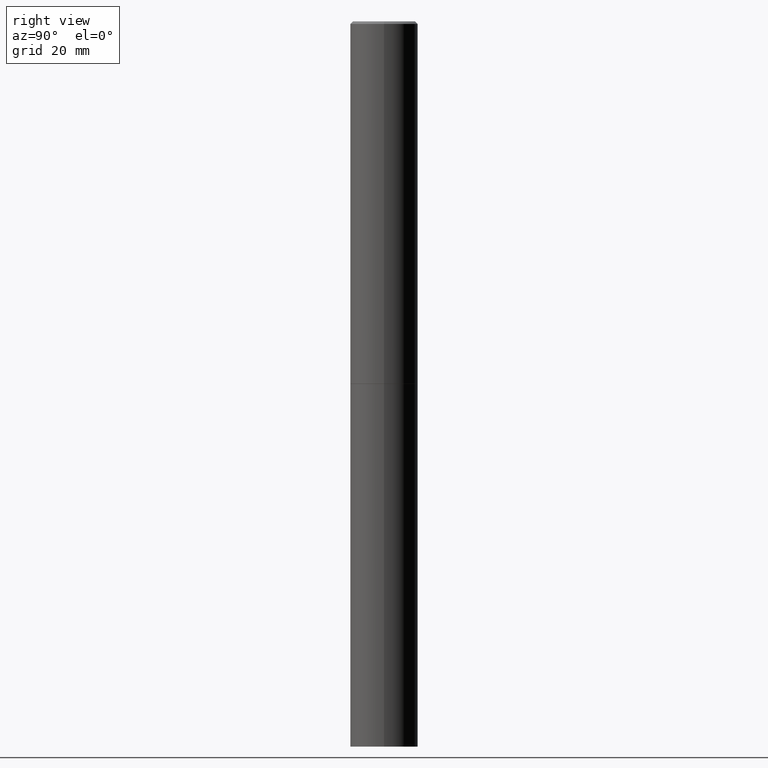
[diagram: clean part render]
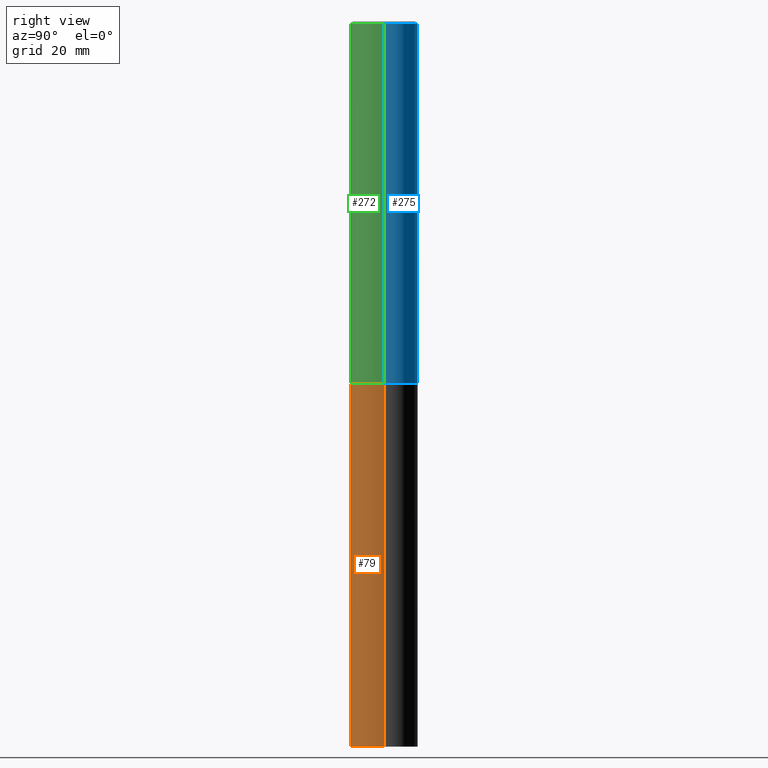
[diagram: same view with three faces highlighted in distinct colors, each labeled with its STEP entity id]
A machine part, right view with three faces highlighted in distinct colors.
Their STEP definitions:

[orange] entity #79 — the highlighted cylindrical surface (edge-blend (fillet) strip) has radius 7.0002 mm, axis along (-0, 0, 1).
#34 = DIRECTION ( 'NONE',  ( 1.000000000000000000, -6.982962677686265922E-15, 0.000000000000000000 ) ) ;
#41 = AXIS2_PLACEMENT_3D ( 'NONE', #343, #87, #140 ) ;
#72 = DIRECTION ( 'NONE',  ( -2.445468806185136597E-29, 3.491481338843145583E-15, 1.000000000000000000 ) ) ;
#74 = ORIENTED_EDGE ( 'NONE', *, *, #168, .F. ) ;
#79 = ADVANCED_FACE ( 'NONE', ( #316 ), #113, .T. ) ;
#85 = DIRECTION ( 'NONE',  ( -2.445468806185136597E-29, 3.491481338843145583E-15, 1.000000000000000000 ) ) ;
#87 = DIRECTION ( 'NONE',  ( -2.445468806185136597E-29, 3.491481338843145583E-15, 1.000000000000000000 ) ) ;
#89 = LINE ( 'NONE', #169, #361 ) ;
#90 = CARTESIAN_POINT ( 'NONE',  ( -0.2756000000000000116, -1.350586421811533611E-14, -5.905499999999999972 ) ) ;
#98 = CIRCLE ( 'NONE', #124, 0.2756000000000000116 ) ;
#100 = CARTESIAN_POINT ( 'NONE',  ( 0.2756000000000000116, -1.924504513970335348E-15, 1.343874319409359987E-29 ) ) ;
#101 = ORIENTED_EDGE ( 'NONE', *, *, #258, .T. ) ;
#113 = CYLINDRICAL_SURFACE ( 'NONE', #41, 0.2756000000000000116 ) ;
#117 = LINE ( 'NONE', #100, #155 ) ;
#118 = ORIENTED_EDGE ( 'NONE', *, *, #338, .F. ) ;
#122 = AXIS2_PLACEMENT_3D ( 'NONE', #216, #85, #306 ) ;
#124 = AXIS2_PLACEMENT_3D ( 'NONE', #211, #72, #34 ) ;
#134 = CARTESIAN_POINT ( 'NONE',  ( 0.2756000000000000116, -2.254344756050852692E-14, -5.905499999999999972 ) ) ;
#140 = DIRECTION ( 'NONE',  ( 1.000000000000000000, -6.982962677686267499E-15, 4.876176775795935793E-29 ) ) ;
#148 = CARTESIAN_POINT ( 'NONE',  ( 0.2756000000000000116, -1.223380146317248997E-14, -2.952700000000000102 ) ) ;
#155 = VECTOR ( 'NONE', #206, 39.37007874015748143 ) ;
#160 = CARTESIAN_POINT ( 'NONE',  ( -0.2756000000000000116, -1.350586421811533611E-14, -2.952700000000000102 ) ) ;
#161 = EDGE_LOOP ( 'NONE', ( #118, #366, #101, #74 ) ) ;
#168 = EDGE_CURVE ( 'NONE', #273, #237, #170, .T. ) ;
#169 = CARTESIAN_POINT ( 'NONE',  ( -0.2756000000000000116, 1.958255779754836195E-15, -1.355658510874252007E-29 ) ) ;
#170 = CIRCLE ( 'NONE', #122, 0.2756000000000000116 ) ;
#205 = DIRECTION ( 'NONE',  ( -2.445468806185136877E-29, 3.491481338843145188E-15, 1.000000000000000000 ) ) ;
#206 = DIRECTION ( 'NONE',  ( -2.445468806185136877E-29, 3.491481338843145188E-15, 1.000000000000000000 ) ) ;
#211 = CARTESIAN_POINT ( 'NONE',  ( 1.444171603492632270E-28, -2.061894304653819197E-14, -5.905499999999999972 ) ) ;
#216 = CARTESIAN_POINT ( 'NONE',  ( 7.220735744022852519E-29, -1.030929694920215502E-14, -2.952700000000000102 ) ) ;
#237 = VERTEX_POINT ( 'NONE', #148 ) ;
#258 = EDGE_CURVE ( 'NONE', #363, #237, #117, .T. ) ;
#273 = VERTEX_POINT ( 'NONE', #160 ) ;
#306 = DIRECTION ( 'NONE',  ( 1.000000000000000000, -6.982962677686265922E-15, 0.000000000000000000 ) ) ;
#316 = FACE_OUTER_BOUND ( 'NONE', #161, .T. ) ;
#322 = EDGE_CURVE ( 'NONE', #362, #363, #98, .T. ) ;
#338 = EDGE_CURVE ( 'NONE', #362, #273, #89, .T. ) ;
#343 = CARTESIAN_POINT ( 'NONE',  ( 0.000000000000000000, 0.000000000000000000, 0.000000000000000000 ) ) ;
#361 = VECTOR ( 'NONE', #205, 39.37007874015748143 ) ;
#362 = VERTEX_POINT ( 'NONE', #90 ) ;
#363 = VERTEX_POINT ( 'NONE', #134 ) ;
#366 = ORIENTED_EDGE ( 'NONE', *, *, #322, .T. ) ;

[blue] entity #275 — the highlighted cylindrical surface (edge-blend (fillet) strip) has radius 7.0002 mm, axis along (-0, 0, 1).
#18 = VERTEX_POINT ( 'NONE', #288 ) ;
#24 = ORIENTED_EDGE ( 'NONE', *, *, #103, .T. ) ;
#43 = CYLINDRICAL_SURFACE ( 'NONE', #164, 0.2755999999999999006 ) ;
#66 = DIRECTION ( 'NONE',  ( -2.445468806185136877E-29, 3.491481338843145188E-15, 1.000000000000000000 ) ) ;
#70 = CARTESIAN_POINT ( 'NONE',  ( -0.2755999999999999006, 1.958255779754835406E-15, -1.355658510874251446E-29 ) ) ;
#86 = DIRECTION ( 'NONE',  ( -2.445468806185136597E-29, 3.491481338843145583E-15, 1.000000000000000000 ) ) ;
#88 = VERTEX_POINT ( 'NONE', #111 ) ;
#103 = EDGE_CURVE ( 'NONE', #109, #88, #318, .T. ) ;
#109 = VERTEX_POINT ( 'NONE', #245 ) ;
#111 = CARTESIAN_POINT ( 'NONE',  ( -0.2755999999999997341, 1.854674887193470078E-15, -0.02000000000000006287 ) ) ;
#125 = DIRECTION ( 'NONE',  ( 1.000000000000000000, -6.982962677686265922E-15, 0.000000000000000000 ) ) ;
#138 = FACE_OUTER_BOUND ( 'NONE', #166, .T. ) ;
#146 = AXIS2_PLACEMENT_3D ( 'NONE', #244, #86, #191 ) ;
#147 = VECTOR ( 'NONE', #323, 39.37007874015748143 ) ;
#149 = CARTESIAN_POINT ( 'NONE',  ( 0.2755999999999997341, -1.960582874962695433E-15, -0.02000000000000006287 ) ) ;
#150 = LINE ( 'NONE', #183, #147 ) ;
#164 = AXIS2_PLACEMENT_3D ( 'NONE', #217, #349, #260 ) ;
#166 = EDGE_LOOP ( 'NONE', ( #247, #24, #201, #344 ) ) ;
#183 = CARTESIAN_POINT ( 'NONE',  ( 0.2755999999999999006, -1.924504513970334560E-15, 1.343874319409359427E-29 ) ) ;
#191 = DIRECTION ( 'NONE',  ( 1.000000000000000000, -6.982962677686264344E-15, 0.000000000000000000 ) ) ;
#201 = ORIENTED_EDGE ( 'NONE', *, *, #293, .F. ) ;
#215 = CARTESIAN_POINT ( 'NONE',  ( 4.890937612370288923E-31, -6.982962677686312563E-17, -0.02000000000000006287 ) ) ;
#217 = CARTESIAN_POINT ( 'NONE',  ( 0.000000000000000000, 0.000000000000000000, 0.000000000000000000 ) ) ;
#226 = EDGE_CURVE ( 'NONE', #18, #109, #346, .T. ) ;
#228 = AXIS2_PLACEMENT_3D ( 'NONE', #215, #261, #125 ) ;
#244 = CARTESIAN_POINT ( 'NONE',  ( 7.218290275216666916E-29, -1.030580546786331359E-14, -2.951700000000000212 ) ) ;
#245 = CARTESIAN_POINT ( 'NONE',  ( -0.2756000000000000671, -3.229561767565248303E-15, -2.951700000000000212 ) ) ;
#247 = ORIENTED_EDGE ( 'NONE', *, *, #226, .T. ) ;
#260 = DIRECTION ( 'NONE',  ( 1.000000000000000000, -6.982962677686267499E-15, 4.876176775795935793E-29 ) ) ;
#261 = DIRECTION ( 'NONE',  ( -2.445468806185136597E-29, 3.491481338843145583E-15, 1.000000000000000000 ) ) ;
#270 = VERTEX_POINT ( 'NONE', #149 ) ;
#275 = ADVANCED_FACE ( 'NONE', ( #138 ), #43, .T. ) ;
#288 = CARTESIAN_POINT ( 'NONE',  ( 0.2756000000000000671, -1.223030998183364854E-14, -2.951700000000000212 ) ) ;
#293 = EDGE_CURVE ( 'NONE', #270, #88, #352, .T. ) ;
#294 = VECTOR ( 'NONE', #66, 39.37007874015748143 ) ;
#303 = EDGE_CURVE ( 'NONE', #18, #270, #150, .T. ) ;
#318 = LINE ( 'NONE', #70, #294 ) ;
#323 = DIRECTION ( 'NONE',  ( -2.445468806185136877E-29, 3.491481338843145188E-15, 1.000000000000000000 ) ) ;
#344 = ORIENTED_EDGE ( 'NONE', *, *, #303, .F. ) ;
#346 = CIRCLE ( 'NONE', #146, 0.2756000000000000671 ) ;
#349 = DIRECTION ( 'NONE',  ( -2.445468806185136597E-29, 3.491481338843145583E-15, 1.000000000000000000 ) ) ;
#352 = CIRCLE ( 'NONE', #228, 0.2755999999999997341 ) ;

[green] entity #272 — the highlighted cylindrical surface (edge-blend (fillet) strip) has radius 7.0002 mm, axis along (-0, 0, 1).
#3 = DIRECTION ( 'NONE',  ( 1.000000000000000000, -6.982962677686265922E-15, 0.000000000000000000 ) ) ;
#10 = AXIS2_PLACEMENT_3D ( 'NONE', #76, #105, #81 ) ;
#18 = VERTEX_POINT ( 'NONE', #288 ) ;
#35 = CYLINDRICAL_SURFACE ( 'NONE', #91, 0.2755999999999999006 ) ;
#53 = CARTESIAN_POINT ( 'NONE',  ( 4.890937612370288923E-31, -6.982962677686312563E-17, -0.02000000000000006287 ) ) ;
#66 = DIRECTION ( 'NONE',  ( -2.445468806185136877E-29, 3.491481338843145188E-15, 1.000000000000000000 ) ) ;
#70 = CARTESIAN_POINT ( 'NONE',  ( -0.2755999999999999006, 1.958255779754835406E-15, -1.355658510874251446E-29 ) ) ;
#76 = CARTESIAN_POINT ( 'NONE',  ( 7.218290275216666916E-29, -1.030580546786331359E-14, -2.951700000000000212 ) ) ;
#81 = DIRECTION ( 'NONE',  ( 1.000000000000000000, -6.982962677686264344E-15, 0.000000000000000000 ) ) ;
#83 = CIRCLE ( 'NONE', #329, 0.2755999999999997341 ) ;
#88 = VERTEX_POINT ( 'NONE', #111 ) ;
#91 = AXIS2_PLACEMENT_3D ( 'NONE', #203, #315, #136 ) ;
#103 = EDGE_CURVE ( 'NONE', #109, #88, #318, .T. ) ;
#105 = DIRECTION ( 'NONE',  ( -2.445468806185136597E-29, 3.491481338843145583E-15, 1.000000000000000000 ) ) ;
#109 = VERTEX_POINT ( 'NONE', #245 ) ;
#111 = CARTESIAN_POINT ( 'NONE',  ( -0.2755999999999997341, 1.854674887193470078E-15, -0.02000000000000006287 ) ) ;
#131 = ORIENTED_EDGE ( 'NONE', *, *, #242, .F. ) ;
#135 = CIRCLE ( 'NONE', #10, 0.2756000000000000671 ) ;
#136 = DIRECTION ( 'NONE',  ( 1.000000000000000000, -6.982962677686267499E-15, 4.876176775795935793E-29 ) ) ;
#139 = ORIENTED_EDGE ( 'NONE', *, *, #303, .T. ) ;
#141 = EDGE_LOOP ( 'NONE', ( #280, #307, #139, #131 ) ) ;
#147 = VECTOR ( 'NONE', #323, 39.37007874015748143 ) ;
#149 = CARTESIAN_POINT ( 'NONE',  ( 0.2755999999999997341, -1.960582874962695433E-15, -0.02000000000000006287 ) ) ;
#150 = LINE ( 'NONE', #183, #147 ) ;
#183 = CARTESIAN_POINT ( 'NONE',  ( 0.2755999999999999006, -1.924504513970334560E-15, 1.343874319409359427E-29 ) ) ;
#198 = DIRECTION ( 'NONE',  ( -2.445468806185136597E-29, 3.491481338843145583E-15, 1.000000000000000000 ) ) ;
#203 = CARTESIAN_POINT ( 'NONE',  ( 0.000000000000000000, 0.000000000000000000, 0.000000000000000000 ) ) ;
#207 = EDGE_CURVE ( 'NONE', #109, #18, #135, .T. ) ;
#242 = EDGE_CURVE ( 'NONE', #88, #270, #83, .T. ) ;
#245 = CARTESIAN_POINT ( 'NONE',  ( -0.2756000000000000671, -3.229561767565248303E-15, -2.951700000000000212 ) ) ;
#270 = VERTEX_POINT ( 'NONE', #149 ) ;
#272 = ADVANCED_FACE ( 'NONE', ( #297 ), #35, .T. ) ;
#280 = ORIENTED_EDGE ( 'NONE', *, *, #103, .F. ) ;
#288 = CARTESIAN_POINT ( 'NONE',  ( 0.2756000000000000671, -1.223030998183364854E-14, -2.951700000000000212 ) ) ;
#294 = VECTOR ( 'NONE', #66, 39.37007874015748143 ) ;
#297 = FACE_OUTER_BOUND ( 'NONE', #141, .T. ) ;
#303 = EDGE_CURVE ( 'NONE', #18, #270, #150, .T. ) ;
#307 = ORIENTED_EDGE ( 'NONE', *, *, #207, .T. ) ;
#315 = DIRECTION ( 'NONE',  ( -2.445468806185136597E-29, 3.491481338843145583E-15, 1.000000000000000000 ) ) ;
#318 = LINE ( 'NONE', #70, #294 ) ;
#323 = DIRECTION ( 'NONE',  ( -2.445468806185136877E-29, 3.491481338843145188E-15, 1.000000000000000000 ) ) ;
#329 = AXIS2_PLACEMENT_3D ( 'NONE', #53, #198, #3 ) ;